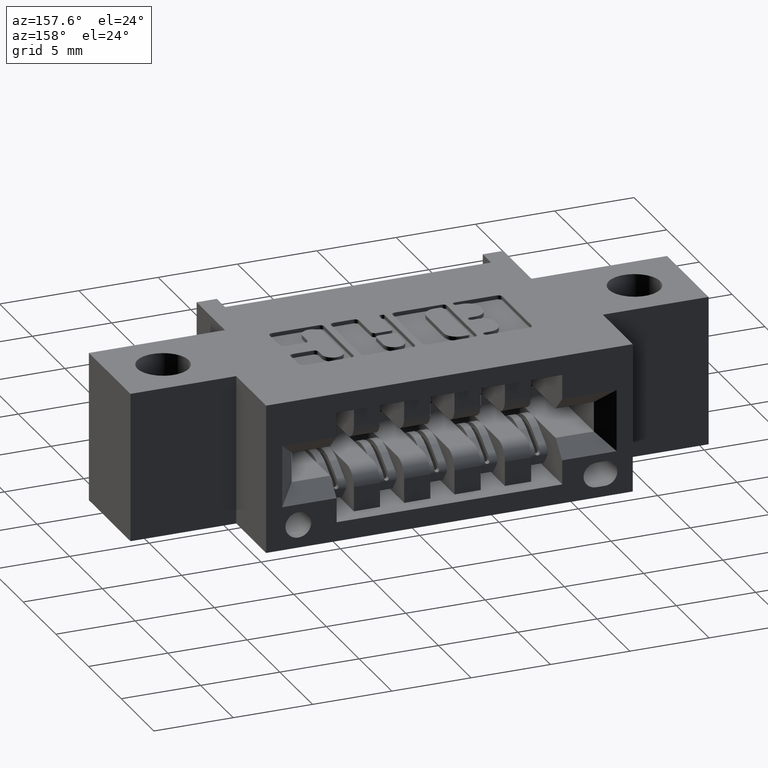
[diagram: clean part render]
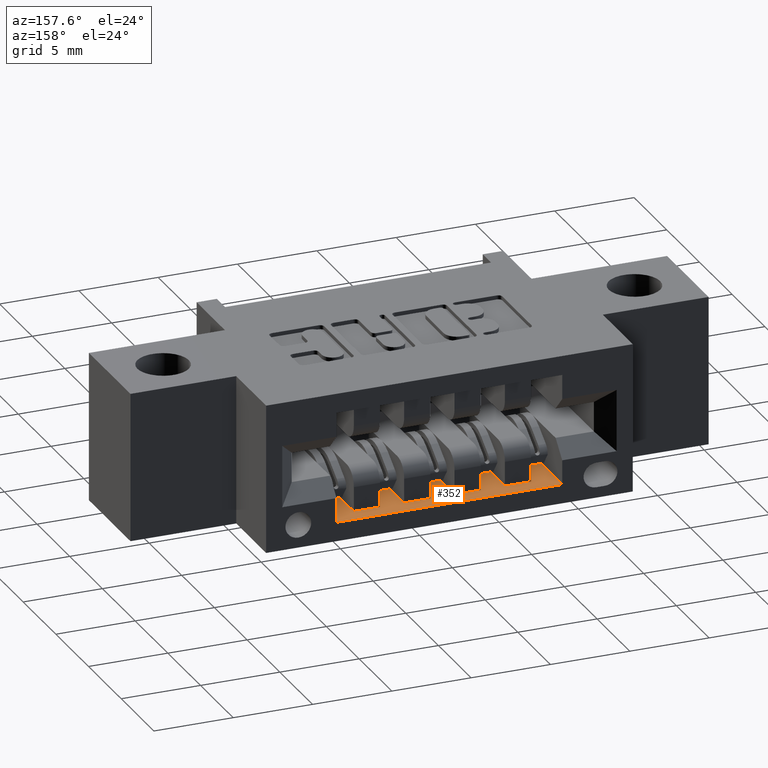
[diagram: same view with one face highlighted and labeled with its STEP entity id]
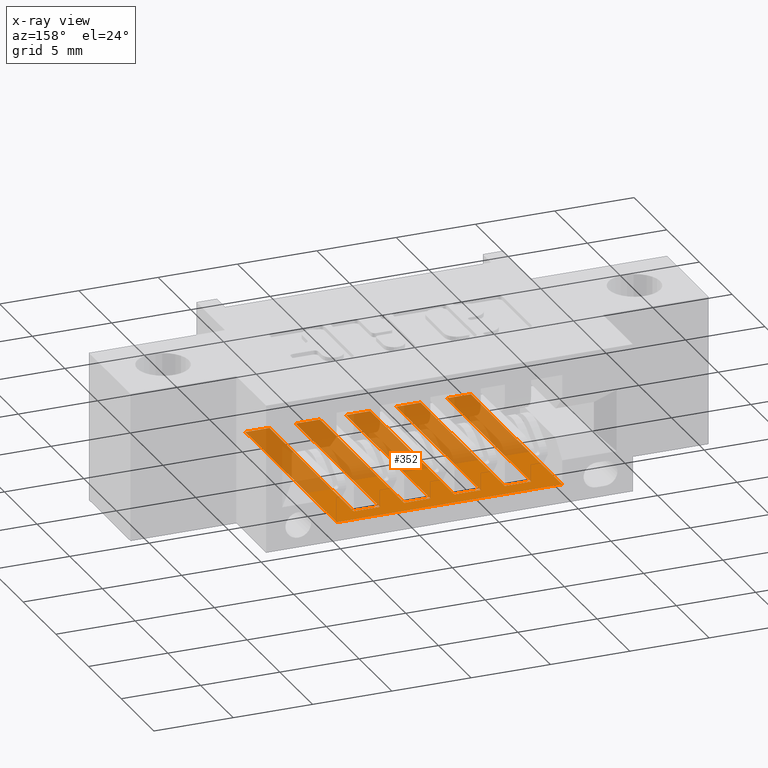
[diagram: x-ray of the same camera — body ghosted, the highlighted face saturated]
A machine part, auxiliary view. The second image highlights one B-rep face of the part: STEP entity #352.
The next image is the same camera in x-ray: the body ghosted, the highlighted face saturated — about 60% of this face is hidden behind the body in this view.
In plain terms, the highlighted planar face has unit normal (0, 0, -1).
Its self-contained STEP definition (entity closure, byte-faithful):
#258 = DIRECTION ( 'NONE',  ( -0.0000000000000000000, 1.000000000000000000, 1.138269997360109921E-16 ) ) ;
#333 = VERTEX_POINT ( 'NONE', #5684 ) ;
#352 = ADVANCED_FACE ( 'NONE', ( #6233 ), #2316, .F. ) ;
#361 = LINE ( 'NONE', #2837, #7332 ) ;
#378 = LINE ( 'NONE', #5007, #6249 ) ;
#395 = ORIENTED_EDGE ( 'NONE', *, *, #1704, .F. ) ;
#402 = CARTESIAN_POINT ( 'NONE',  ( 1.047500000000000098, 0.05000000000000000278, -0.3224999999999998423 ) ) ;
#442 = VECTOR ( 'NONE', #7329, 39.37007874015748143 ) ;
#488 = EDGE_LOOP ( 'NONE', ( #6189, #5102, #6311, #395, #3492, #2868, #7503, #6610, #5940, #1096, #4816, #6372, #3282, #7535, #4926, #4733, #7160, #1541, #2763, #7556 ) ) ;
#581 = VECTOR ( 'NONE', #7724, 39.37007874015748143 ) ;
#599 = LINE ( 'NONE', #5733, #5686 ) ;
#604 = VERTEX_POINT ( 'NONE', #1991 ) ;
#626 = CARTESIAN_POINT ( 'NONE',  ( 0.9974999999999999423, 0.5999999999999999778, -0.3224999999999997868 ) ) ;
#696 = CARTESIAN_POINT ( 'NONE',  ( 0.6224999999999999423, 0.5579999999999999405, -0.3224999999999998423 ) ) ;
#725 = CARTESIAN_POINT ( 'NONE',  ( 1.047500000000000098, 0.05000000000000000278, -0.3224999999999998979 ) ) ;
#755 = EDGE_CURVE ( 'NONE', #5911, #3149, #791, .T. ) ;
#791 = LINE ( 'NONE', #7929, #5061 ) ;
#797 = LINE ( 'NONE', #2803, #2020 ) ;
#865 = CARTESIAN_POINT ( 'NONE',  ( 0.4974999999999999978, 0.05000000000000000278, -0.3224999999999998979 ) ) ;
#1008 = VECTOR ( 'NONE', #6589, 39.37007874015748143 ) ;
#1022 = CARTESIAN_POINT ( 'NONE',  ( 0.8725000000000000533, 0.5579999999999999405, -0.3224999999999997868 ) ) ;
#1064 = DIRECTION ( 'NONE',  ( -0.0000000000000000000, 1.000000000000000000, 1.138269997360109921E-16 ) ) ;
#1087 = DIRECTION ( 'NONE',  ( -0.0000000000000000000, 1.000000000000000000, 1.138269997360109921E-16 ) ) ;
#1096 = ORIENTED_EDGE ( 'NONE', *, *, #4821, .T. ) ;
#1103 = CARTESIAN_POINT ( 'NONE',  ( 0.6224999999999999423, 0.05000000000000000278, -0.3224999999999998979 ) ) ;
#1166 = VECTOR ( 'NONE', #1447, 39.37007874015748143 ) ;
#1238 = EDGE_CURVE ( 'NONE', #4228, #4970, #5920, .T. ) ;
#1340 = VECTOR ( 'NONE', #8347, 39.37007874015748143 ) ;
#1349 = DIRECTION ( 'NONE',  ( -1.000000000000000000, -0.0000000000000000000, -0.0000000000000000000 ) ) ;
#1381 = LINE ( 'NONE', #626, #1340 ) ;
#1447 = DIRECTION ( 'NONE',  ( -0.0000000000000000000, 1.000000000000000000, 1.138269997360109921E-16 ) ) ;
#1481 = LINE ( 'NONE', #5398, #2711 ) ;
#1541 = ORIENTED_EDGE ( 'NONE', *, *, #3165, .T. ) ;
#1689 = DIRECTION ( 'NONE',  ( -0.0000000000000000000, 1.000000000000000000, 1.138269997360109921E-16 ) ) ;
#1697 = CARTESIAN_POINT ( 'NONE',  ( 0.4375000000000000555, 0.5999999999999999778, -0.3224999999999998423 ) ) ;
#1704 = EDGE_CURVE ( 'NONE', #6335, #604, #7373, .T. ) ;
#1730 = CARTESIAN_POINT ( 'NONE',  ( 0.9374999999999998890, 0.5579999999999999405, -0.3224999999999997868 ) ) ;
#1811 = EDGE_CURVE ( 'NONE', #2668, #4957, #3188, .T. ) ;
#1812 = VECTOR ( 'NONE', #7512, 39.37007874015748143 ) ;
#1939 = VECTOR ( 'NONE', #4843, 39.37007874015748143 ) ;
#1968 = VERTEX_POINT ( 'NONE', #1022 ) ;
#1991 = CARTESIAN_POINT ( 'NONE',  ( 0.5625000000000000000, 0.5579999999999999405, -0.3224999999999998423 ) ) ;
#2020 = VECTOR ( 'NONE', #4783, 39.37007874015748143 ) ;
#2022 = CARTESIAN_POINT ( 'NONE',  ( 0.4375000000000000555, 0.5999999999999999778, -0.3224999999999998423 ) ) ;
#2193 = DIRECTION ( 'NONE',  ( -0.0000000000000000000, 1.000000000000000000, 1.138269997360109921E-16 ) ) ;
#2316 = PLANE ( 'NONE',  #2928 ) ;
#2333 = VECTOR ( 'NONE', #258, 39.37007874015748143 ) ;
#2459 = EDGE_CURVE ( 'NONE', #4002, #7721, #6258, .T. ) ;
#2538 = DIRECTION ( 'NONE',  ( -0.0000000000000000000, 1.000000000000000000, 1.138269997360109921E-16 ) ) ;
#2549 = CARTESIAN_POINT ( 'NONE',  ( 0.6875000000000000000, 0.5579999999999999405, -0.3224999999999998423 ) ) ;
#2668 = VERTEX_POINT ( 'NONE', #6290 ) ;
#2680 = CARTESIAN_POINT ( 'NONE',  ( 0.9375000000000000000, 0.5579999999999999405, -0.3224999999999997868 ) ) ;
#2704 = EDGE_CURVE ( 'NONE', #5581, #1968, #7131, .T. ) ;
#2711 = VECTOR ( 'NONE', #4037, 39.37007874015748143 ) ;
#2763 = ORIENTED_EDGE ( 'NONE', *, *, #4373, .F. ) ;
#2792 = EDGE_CURVE ( 'NONE', #4002, #6077, #797, .T. ) ;
#2803 = CARTESIAN_POINT ( 'NONE',  ( 1.047500000000000098, 0.05000000000000000278, -0.3224999999999998979 ) ) ;
#2837 = CARTESIAN_POINT ( 'NONE',  ( 1.047500000000000098, 0.05000000000000000278, -0.3224999999999998979 ) ) ;
#2868 = ORIENTED_EDGE ( 'NONE', *, *, #1238, .T. ) ;
#2920 = CARTESIAN_POINT ( 'NONE',  ( 0.9374999999999998890, 0.05000000000000014849, -0.3224999999999998423 ) ) ;
#2928 = AXIS2_PLACEMENT_3D ( 'NONE', #1697, #8173, #8047 ) ;
#3053 = CARTESIAN_POINT ( 'NONE',  ( 0.8124999999999998890, 0.5579999999999999405, -0.3224999999999997868 ) ) ;
#3149 = VERTEX_POINT ( 'NONE', #7895 ) ;
#3152 = LINE ( 'NONE', #2549, #581 ) ;
#3165 = EDGE_CURVE ( 'NONE', #7574, #6068, #1381, .T. ) ;
#3188 = LINE ( 'NONE', #3226, #5079 ) ;
#3226 = CARTESIAN_POINT ( 'NONE',  ( 1.047500000000000098, 0.05000000000000000278, -0.3224999999999998423 ) ) ;
#3282 = ORIENTED_EDGE ( 'NONE', *, *, #1811, .T. ) ;
#3492 = ORIENTED_EDGE ( 'NONE', *, *, #8251, .T. ) ;
#3673 = CARTESIAN_POINT ( 'NONE',  ( 0.4375000000000000555, 0.05000000000000014849, -0.3224999999999998979 ) ) ;
#3880 = CARTESIAN_POINT ( 'NONE',  ( 0.9974999999999999423, 0.5999999999999999778, -0.3224999999999997868 ) ) ;
#3892 = EDGE_CURVE ( 'NONE', #4957, #1968, #7696, .T. ) ;
#3935 = VERTEX_POINT ( 'NONE', #2022 ) ;
#3993 = DIRECTION ( 'NONE',  ( 1.000000000000000000, 0.0000000000000000000, 0.0000000000000000000 ) ) ;
#4002 = VERTEX_POINT ( 'NONE', #4775 ) ;
#4017 = VERTEX_POINT ( 'NONE', #865 ) ;
#4026 = CARTESIAN_POINT ( 'NONE',  ( 0.8724999999999999423, 0.05000000000000000278, -0.3224999999999998423 ) ) ;
#4037 = DIRECTION ( 'NONE',  ( -0.0000000000000000000, 1.000000000000000000, 1.138269997360109921E-16 ) ) ;
#4059 = DIRECTION ( 'NONE',  ( 1.000000000000000000, 0.0000000000000000000, 0.0000000000000000000 ) ) ;
#4115 = DIRECTION ( 'NONE',  ( -1.000000000000000000, -0.0000000000000000000, -0.0000000000000000000 ) ) ;
#4150 = VECTOR ( 'NONE', #1349, 39.37007874015748143 ) ;
#4204 = VECTOR ( 'NONE', #2193, 39.37007874015748143 ) ;
#4228 = VERTEX_POINT ( 'NONE', #1103 ) ;
#4231 = LINE ( 'NONE', #402, #1812 ) ;
#4284 = CARTESIAN_POINT ( 'NONE',  ( 0.8724999999999999423, 0.5999999999999999778, -0.3224999999999997868 ) ) ;
#4373 = EDGE_CURVE ( 'NONE', #3935, #6068, #378, .T. ) ;
#4604 = CARTESIAN_POINT ( 'NONE',  ( 0.7474999999999998312, 0.05000000000000000278, -0.3224999999999998979 ) ) ;
#4641 = LINE ( 'NONE', #7241, #4204 ) ;
#4720 = VERTEX_POINT ( 'NONE', #2920 ) ;
#4730 = CARTESIAN_POINT ( 'NONE',  ( 0.5625000000000000000, 0.5579999999999999405, -0.3224999999999998423 ) ) ;
#4733 = ORIENTED_EDGE ( 'NONE', *, *, #6487, .F. ) ;
#4765 = EDGE_CURVE ( 'NONE', #2668, #5911, #599, .T. ) ;
#4775 = CARTESIAN_POINT ( 'NONE',  ( 0.6874999999999998890, 0.05000000000000014849, -0.3224999999999998979 ) ) ;
#4783 = DIRECTION ( 'NONE',  ( 1.000000000000000000, 0.0000000000000000000, 0.0000000000000000000 ) ) ;
#4816 = ORIENTED_EDGE ( 'NONE', *, *, #755, .F. ) ;
#4821 = EDGE_CURVE ( 'NONE', #6077, #3149, #1481, .T. ) ;
#4843 = DIRECTION ( 'NONE',  ( -0.0000000000000000000, 1.000000000000000000, 1.138269997360109921E-16 ) ) ;
#4851 = CARTESIAN_POINT ( 'NONE',  ( 0.5625000000000000000, 0.5999999999999999778, -0.3224999999999998423 ) ) ;
#4926 = ORIENTED_EDGE ( 'NONE', *, *, #2704, .F. ) ;
#4957 = VERTEX_POINT ( 'NONE', #4026 ) ;
#4970 = VERTEX_POINT ( 'NONE', #696 ) ;
#5007 = CARTESIAN_POINT ( 'NONE',  ( 0.4375000000000000555, 0.5999999999999999778, -0.3224999999999998423 ) ) ;
#5038 = EDGE_CURVE ( 'NONE', #604, #333, #7196, .T. ) ;
#5061 = VECTOR ( 'NONE', #4115, 39.37007874015748143 ) ;
#5079 = VECTOR ( 'NONE', #3993, 39.37007874015748143 ) ;
#5102 = ORIENTED_EDGE ( 'NONE', *, *, #7761, .T. ) ;
#5314 = LINE ( 'NONE', #725, #1008 ) ;
#5398 = CARTESIAN_POINT ( 'NONE',  ( 0.7474999999999998312, 0.5999999999999999778, -0.3224999999999998423 ) ) ;
#5581 = VERTEX_POINT ( 'NONE', #1730 ) ;
#5632 = CARTESIAN_POINT ( 'NONE',  ( 0.9974999999999999423, 0.05000000000000000278, -0.3224999999999998423 ) ) ;
#5684 = CARTESIAN_POINT ( 'NONE',  ( 0.4974999999999999978, 0.5579999999999999405, -0.3224999999999998423 ) ) ;
#5686 = VECTOR ( 'NONE', #2538, 39.37007874015748143 ) ;
#5707 = EDGE_CURVE ( 'NONE', #6604, #3935, #6594, .T. ) ;
#5733 = CARTESIAN_POINT ( 'NONE',  ( 0.8124999999999998890, 0.5999999999999999778, -0.3224999999999997868 ) ) ;
#5911 = VERTEX_POINT ( 'NONE', #3053 ) ;
#5920 = LINE ( 'NONE', #7365, #1166 ) ;
#5940 = ORIENTED_EDGE ( 'NONE', *, *, #2792, .T. ) ;
#6035 = VECTOR ( 'NONE', #1689, 39.37007874015748143 ) ;
#6047 = CARTESIAN_POINT ( 'NONE',  ( 0.4375000000000000555, 0.5999999999999999778, -0.3224999999999998423 ) ) ;
#6068 = VERTEX_POINT ( 'NONE', #3880 ) ;
#6077 = VERTEX_POINT ( 'NONE', #4604 ) ;
#6189 = ORIENTED_EDGE ( 'NONE', *, *, #7249, .T. ) ;
#6233 = FACE_OUTER_BOUND ( 'NONE', #488, .T. ) ;
#6249 = VECTOR ( 'NONE', #7623, 39.37007874015748143 ) ;
#6258 = LINE ( 'NONE', #7544, #6455 ) ;
#6290 = CARTESIAN_POINT ( 'NONE',  ( 0.8124999999999998890, 0.05000000000000014849, -0.3224999999999998423 ) ) ;
#6311 = ORIENTED_EDGE ( 'NONE', *, *, #5038, .F. ) ;
#6335 = VERTEX_POINT ( 'NONE', #7059 ) ;
#6372 = ORIENTED_EDGE ( 'NONE', *, *, #4765, .F. ) ;
#6436 = VECTOR ( 'NONE', #1087, 39.37007874015748143 ) ;
#6455 = VECTOR ( 'NONE', #1064, 39.37007874015748143 ) ;
#6487 = EDGE_CURVE ( 'NONE', #4720, #5581, #4641, .T. ) ;
#6546 = EDGE_CURVE ( 'NONE', #4720, #7574, #4231, .T. ) ;
#6589 = DIRECTION ( 'NONE',  ( 1.000000000000000000, 0.0000000000000000000, 0.0000000000000000000 ) ) ;
#6594 = LINE ( 'NONE', #6047, #2333 ) ;
#6602 = EDGE_CURVE ( 'NONE', #7721, #4970, #3152, .T. ) ;
#6604 = VERTEX_POINT ( 'NONE', #3673 ) ;
#6610 = ORIENTED_EDGE ( 'NONE', *, *, #2459, .F. ) ;
#7059 = CARTESIAN_POINT ( 'NONE',  ( 0.5625000000000000000, 0.05000000000000014849, -0.3224999999999998979 ) ) ;
#7131 = LINE ( 'NONE', #2680, #4150 ) ;
#7160 = ORIENTED_EDGE ( 'NONE', *, *, #6546, .T. ) ;
#7196 = LINE ( 'NONE', #4730, #442 ) ;
#7241 = CARTESIAN_POINT ( 'NONE',  ( 0.9374999999999998890, 0.5999999999999999778, -0.3224999999999997868 ) ) ;
#7249 = EDGE_CURVE ( 'NONE', #6604, #4017, #5314, .T. ) ;
#7329 = DIRECTION ( 'NONE',  ( -1.000000000000000000, -0.0000000000000000000, -0.0000000000000000000 ) ) ;
#7332 = VECTOR ( 'NONE', #4059, 39.37007874015748143 ) ;
#7365 = CARTESIAN_POINT ( 'NONE',  ( 0.6224999999999999423, 0.5999999999999999778, -0.3224999999999998423 ) ) ;
#7373 = LINE ( 'NONE', #4851, #6035 ) ;
#7459 = CARTESIAN_POINT ( 'NONE',  ( 0.4974999999999999978, 0.5999999999999999778, -0.3224999999999998423 ) ) ;
#7503 = ORIENTED_EDGE ( 'NONE', *, *, #6602, .F. ) ;
#7512 = DIRECTION ( 'NONE',  ( 1.000000000000000000, 0.0000000000000000000, 0.0000000000000000000 ) ) ;
#7535 = ORIENTED_EDGE ( 'NONE', *, *, #3892, .T. ) ;
#7544 = CARTESIAN_POINT ( 'NONE',  ( 0.6874999999999998890, 0.5999999999999999778, -0.3224999999999998423 ) ) ;
#7556 = ORIENTED_EDGE ( 'NONE', *, *, #5707, .F. ) ;
#7574 = VERTEX_POINT ( 'NONE', #5632 ) ;
#7623 = DIRECTION ( 'NONE',  ( 1.000000000000000000, -0.0000000000000000000, -0.0000000000000000000 ) ) ;
#7696 = LINE ( 'NONE', #4284, #6436 ) ;
#7721 = VERTEX_POINT ( 'NONE', #8076 ) ;
#7724 = DIRECTION ( 'NONE',  ( -1.000000000000000000, -0.0000000000000000000, -0.0000000000000000000 ) ) ;
#7761 = EDGE_CURVE ( 'NONE', #4017, #333, #8031, .T. ) ;
#7895 = CARTESIAN_POINT ( 'NONE',  ( 0.7475000000000000533, 0.5579999999999999405, -0.3224999999999998423 ) ) ;
#7929 = CARTESIAN_POINT ( 'NONE',  ( 0.8125000000000000000, 0.5579999999999999405, -0.3224999999999998423 ) ) ;
#8031 = LINE ( 'NONE', #7459, #1939 ) ;
#8047 = DIRECTION ( 'NONE',  ( 0.0000000000000000000, 1.000000000000000000, 1.138269997360109921E-16 ) ) ;
#8076 = CARTESIAN_POINT ( 'NONE',  ( 0.6874999999999998890, 0.5579999999999999405, -0.3224999999999998423 ) ) ;
#8173 = DIRECTION ( 'NONE',  ( 0.0000000000000000000, 1.138269997360109921E-16, -1.000000000000000000 ) ) ;
#8251 = EDGE_CURVE ( 'NONE', #6335, #4228, #361, .T. ) ;
#8347 = DIRECTION ( 'NONE',  ( -0.0000000000000000000, 1.000000000000000000, 1.138269997360109921E-16 ) ) ;